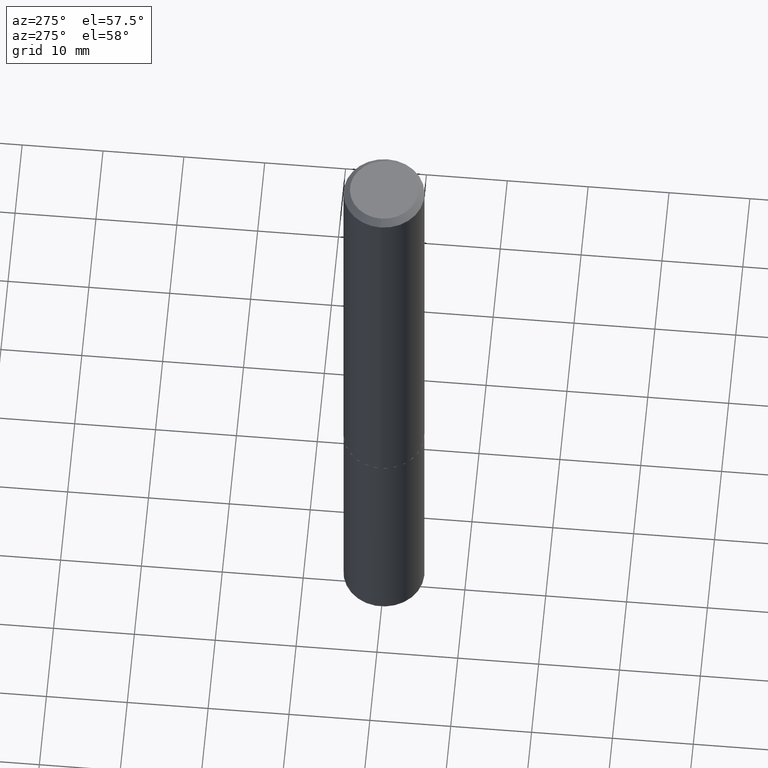
[diagram: clean part render]
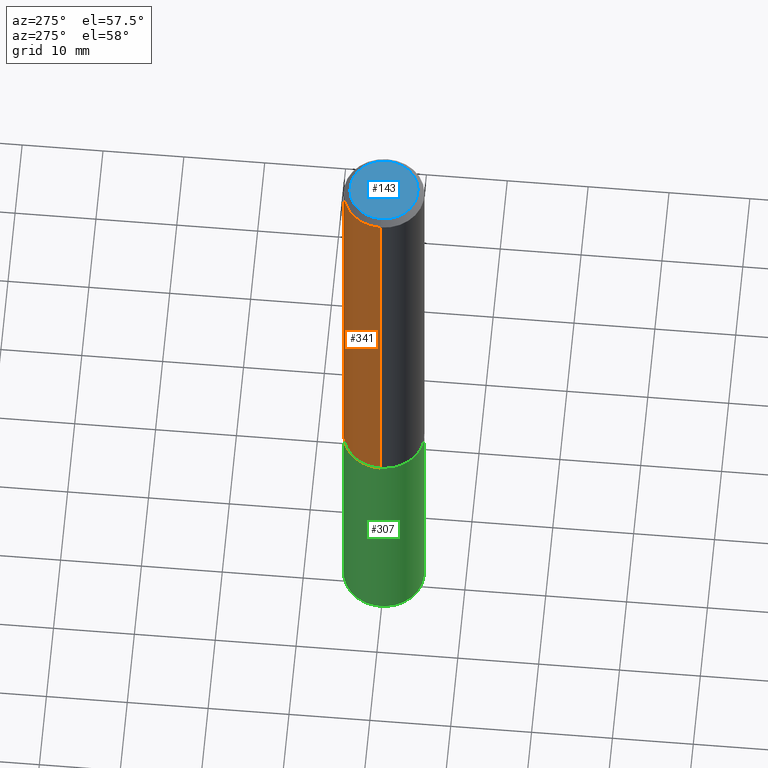
[diagram: same view with three faces highlighted in distinct colors, each labeled with its STEP entity id]
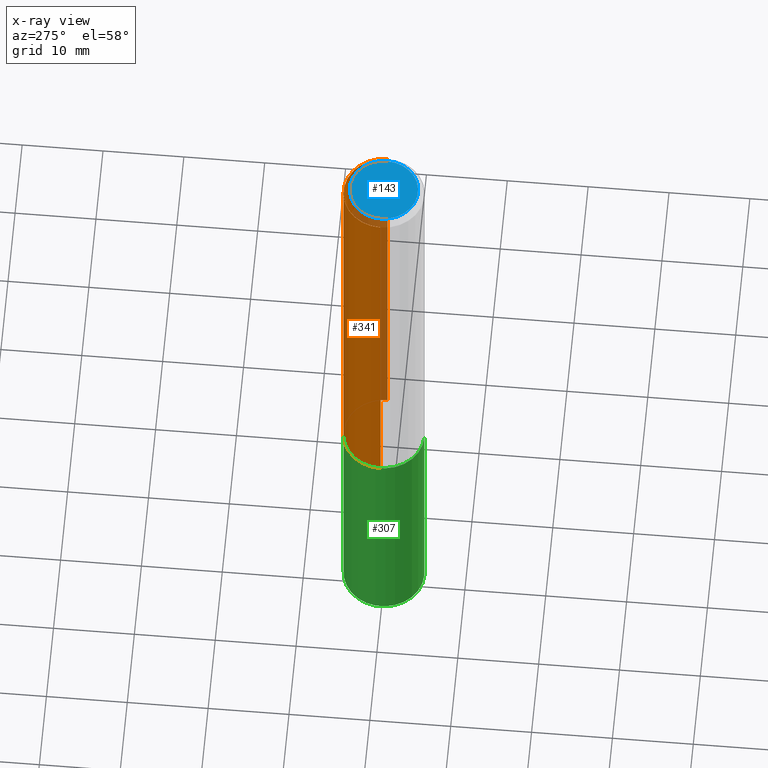
[diagram: x-ray of the same camera — body ghosted, the three highlighted faces saturated]
A machine part, auxiliary view with three faces highlighted in distinct colors.
The next image is the same camera in x-ray (body ghosted, the three faces saturated) — at least one of them is partly hidden behind the body in this view.
Their STEP definitions:

[orange] entity #341 — the highlighted cylindrical surface (partial cylindrical patch) has radius 5 mm, axis along (-0, 0, 1).
#7 = EDGE_CURVE ( 'NONE', #103, #100, #42, .T. ) ;
#12 = EDGE_CURVE ( 'NONE', #100, #184, #363, .T. ) ;
#22 = CIRCLE ( 'NONE', #86, 0.1968500000000002748 ) ;
#30 = EDGE_CURVE ( 'NONE', #103, #367, #22, .T. ) ;
#31 = CARTESIAN_POINT ( 'NONE',  ( -0.1968500000000001360, 1.398703375343758182E-15, -9.682923725166790684E-30 ) ) ;
#33 = CARTESIAN_POINT ( 'NONE',  ( -0.1968500000000002748, -6.297219791734301467E-15, -2.204199999999999715 ) ) ;
#42 = LINE ( 'NONE', #166, #151 ) ;
#84 = ORIENTED_EDGE ( 'NONE', *, *, #12, .F. ) ;
#86 = AXIS2_PLACEMENT_3D ( 'NONE', #383, #253, #298 ) ;
#87 = VECTOR ( 'NONE', #136, 39.37007874015748143 ) ;
#89 = DIRECTION ( 'NONE',  ( 1.000000000000000000, -6.982962677686265922E-15, 0.000000000000000000 ) ) ;
#100 = VERTEX_POINT ( 'NONE', #201 ) ;
#103 = VERTEX_POINT ( 'NONE', #115 ) ;
#115 = CARTESIAN_POINT ( 'NONE',  ( 0.1968500000000002748, -9.070519370180604019E-15, -2.204199999999999715 ) ) ;
#128 = LINE ( 'NONE', #31, #87 ) ;
#135 = ORIENTED_EDGE ( 'NONE', *, *, #30, .T. ) ;
#136 = DIRECTION ( 'NONE',  ( -2.445468806185136877E-29, 3.491481338843145188E-15, 1.000000000000000000 ) ) ;
#151 = VECTOR ( 'NONE', #283, 39.37007874015748143 ) ;
#162 = CARTESIAN_POINT ( 'NONE',  ( 0.000000000000000000, 0.000000000000000000, 0.000000000000000000 ) ) ;
#166 = CARTESIAN_POINT ( 'NONE',  ( 0.1968500000000001360, -1.374596203102542594E-15, 9.598753983154306463E-30 ) ) ;
#182 = CARTESIAN_POINT ( 'NONE',  ( -0.1968500000000000250, -2.503812604114695601E-15, -0.03125000000000022898 ) ) ;
#184 = VERTEX_POINT ( 'NONE', #182 ) ;
#191 = FACE_OUTER_BOUND ( 'NONE', #271, .T. ) ;
#198 = AXIS2_PLACEMENT_3D ( 'NONE', #355, #348, #89 ) ;
#201 = CARTESIAN_POINT ( 'NONE',  ( 0.1968500000000000250, -1.483704994941390709E-15, -0.03125000000000022898 ) ) ;
#246 = CYLINDRICAL_SURFACE ( 'NONE', #310, 0.1968500000000001360 ) ;
#253 = DIRECTION ( 'NONE',  ( -2.445468806185136597E-29, 3.491481338843145583E-15, 1.000000000000000000 ) ) ;
#264 = ORIENTED_EDGE ( 'NONE', *, *, #7, .F. ) ;
#271 = EDGE_LOOP ( 'NONE', ( #135, #311, #84, #264 ) ) ;
#280 = DIRECTION ( 'NONE',  ( -2.445468806185136597E-29, 3.491481338843145583E-15, 1.000000000000000000 ) ) ;
#283 = DIRECTION ( 'NONE',  ( -2.445468806185136877E-29, 3.491481338843145188E-15, 1.000000000000000000 ) ) ;
#298 = DIRECTION ( 'NONE',  ( 1.000000000000000000, -6.982962677686264344E-15, 0.000000000000000000 ) ) ;
#310 = AXIS2_PLACEMENT_3D ( 'NONE', #162, #280, #366 ) ;
#311 = ORIENTED_EDGE ( 'NONE', *, *, #343, .T. ) ;
#341 = ADVANCED_FACE ( 'NONE', ( #191 ), #246, .T. ) ;
#343 = EDGE_CURVE ( 'NONE', #367, #184, #128, .T. ) ;
#348 = DIRECTION ( 'NONE',  ( -2.445468806185136597E-29, 3.491481338843145583E-15, 1.000000000000000000 ) ) ;
#355 = CARTESIAN_POINT ( 'NONE',  ( 7.642090019328607917E-31, -1.091087918388491006E-16, -0.03125000000000022898 ) ) ;
#363 = CIRCLE ( 'NONE', #198, 0.1968500000000000250 ) ;
#366 = DIRECTION ( 'NONE',  ( 1.000000000000000000, -6.982962677686266711E-15, 4.876176775795935793E-29 ) ) ;
#367 = VERTEX_POINT ( 'NONE', #33 ) ;
#383 = CARTESIAN_POINT ( 'NONE',  ( 5.390302342593277355E-29, -7.695923167078060833E-15, -2.204199999999999715 ) ) ;

[blue] entity #143 — the highlighted planar face has unit normal (0, -0, -1).
#6 = ORIENTED_EDGE ( 'NONE', *, *, #203, .T. ) ;
#10 = FACE_OUTER_BOUND ( 'NONE', #137, .T. ) ;
#55 = DIRECTION ( 'NONE',  ( 1.000000000000000000, -6.982962677686266711E-15, 4.876220105038334323E-29 ) ) ;
#80 = VERTEX_POINT ( 'NONE', #110 ) ;
#110 = CARTESIAN_POINT ( 'NONE',  ( -0.1655999999999999972, 1.210933015344269141E-15, 1.206277097151870064E-18 ) ) ;
#137 = EDGE_LOOP ( 'NONE', ( #6, #290 ) ) ;
#139 = CIRCLE ( 'NONE', #233, 0.1655999999999999972 ) ;
#140 = PLANE ( 'NONE',  #304 ) ;
#143 = ADVANCED_FACE ( 'NONE', ( #10 ), #140, .F. ) ;
#154 = DIRECTION ( 'NONE',  ( -2.445468806185136597E-29, 3.491481338843145583E-15, 1.000000000000000000 ) ) ;
#203 = EDGE_CURVE ( 'NONE', #80, #281, #316, .T. ) ;
#211 = CARTESIAN_POINT ( 'NONE',  ( -2.949913012720698115E-47, 4.211693974208535336E-33, 1.206277097160147711E-18 ) ) ;
#233 = AXIS2_PLACEMENT_3D ( 'NONE', #318, #362, #243 ) ;
#243 = DIRECTION ( 'NONE',  ( 1.000000000000000000, -6.982962677686266711E-15, 4.876220105038334323E-29 ) ) ;
#281 = VERTEX_POINT ( 'NONE', #361 ) ;
#290 = ORIENTED_EDGE ( 'NONE', *, *, #356, .T. ) ;
#304 = AXIS2_PLACEMENT_3D ( 'NONE', #373, #320, #351 ) ;
#316 = CIRCLE ( 'NONE', #390, 0.1655999999999999972 ) ;
#318 = CARTESIAN_POINT ( 'NONE',  ( -2.949913012720698115E-47, 4.211693974208535336E-33, 1.206277097160147711E-18 ) ) ;
#320 = DIRECTION ( 'NONE',  ( 2.438088387897960049E-29, -3.491481338843145188E-15, -1.000000000000000000 ) ) ;
#351 = DIRECTION ( 'NONE',  ( -1.000000000000000000, 6.982962677686265922E-15, -4.876176775795935793E-29 ) ) ;
#356 = EDGE_CURVE ( 'NONE', #281, #80, #139, .T. ) ;
#361 = CARTESIAN_POINT ( 'NONE',  ( 0.1655999999999999972, -1.297848145565570390E-15, 1.206277097168728884E-18 ) ) ;
#362 = DIRECTION ( 'NONE',  ( -2.445468806185136597E-29, 3.491481338843145583E-15, 1.000000000000000000 ) ) ;
#373 = CARTESIAN_POINT ( 'NONE',  ( -1.474956506360349058E-47, 2.105846987104267668E-33, 6.031385485800738553E-19 ) ) ;
#390 = AXIS2_PLACEMENT_3D ( 'NONE', #211, #154, #55 ) ;

[green] entity #307 — the highlighted cylindrical surface (partial cylindrical patch) has radius 5 mm, axis along (-0, 0, 1).
#4 = ORIENTED_EDGE ( 'NONE', *, *, #368, .T. ) ;
#16 = VECTOR ( 'NONE', #315, 39.37007874015748143 ) ;
#21 = CARTESIAN_POINT ( 'NONE',  ( 5.391525076996369035E-29, -7.697668907747481548E-15, -2.204699999999999438 ) ) ;
#26 = DIRECTION ( 'NONE',  ( -2.445183817949731968E-29, 3.491889458216768216E-15, 1.000000000000000000 ) ) ;
#54 = CARTESIAN_POINT ( 'NONE',  ( 1.398703375343841801E-15, 0.1968499999999879790, -3.451154201469934790 ) ) ;
#69 = DIRECTION ( 'NONE',  ( -6.982962677686265133E-15, -1.000000000000000000, 2.775563112689116301E-15 ) ) ;
#73 = VERTEX_POINT ( 'NONE', #145 ) ;
#77 = DIRECTION ( 'NONE',  ( -2.445183817949731968E-29, 3.491889458216768610E-15, 1.000000000000000000 ) ) ;
#90 = CYLINDRICAL_SURFACE ( 'NONE', #256, 0.1968500000000000250 ) ;
#108 = EDGE_CURVE ( 'NONE', #284, #73, #344, .T. ) ;
#112 = VECTOR ( 'NONE', #77, 39.37007874015748143 ) ;
#116 = FACE_OUTER_BOUND ( 'NONE', #196, .T. ) ;
#121 = DIRECTION ( 'NONE',  ( -6.982962677686265133E-15, -1.000000000000000000, 4.163344669033674845E-15 ) ) ;
#124 = AXIS2_PLACEMENT_3D ( 'NONE', #161, #371, #69 ) ;
#129 = ORIENTED_EDGE ( 'NONE', *, *, #223, .F. ) ;
#145 = CARTESIAN_POINT ( 'NONE',  ( 1.398703375343841801E-15, 0.1968499999999923367, -2.204700000000000326 ) ) ;
#161 = CARTESIAN_POINT ( 'NONE',  ( 8.439334720246109226E-29, -1.205014919401034769E-14, -3.451154201469934346 ) ) ;
#196 = EDGE_LOOP ( 'NONE', ( #317, #217, #4, #129 ) ) ;
#207 = CARTESIAN_POINT ( 'NONE',  ( 5.391525076996369035E-29, -7.697668907747481548E-15, -2.204699999999999438 ) ) ;
#210 = CIRCLE ( 'NONE', #124, 0.1968500000000000250 ) ;
#216 = LINE ( 'NONE', #248, #16 ) ;
#217 = ORIENTED_EDGE ( 'NONE', *, *, #376, .T. ) ;
#223 = EDGE_CURVE ( 'NONE', #73, #365, #359, .T. ) ;
#248 = CARTESIAN_POINT ( 'NONE',  ( -1.374596203102487571E-15, -0.1968500000000076855, -2.204699999999998550 ) ) ;
#249 = VERTEX_POINT ( 'NONE', #360 ) ;
#256 = AXIS2_PLACEMENT_3D ( 'NONE', #207, #329, #328 ) ;
#275 = CARTESIAN_POINT ( 'NONE',  ( -1.374596203102487571E-15, -0.1968500000000076855, -2.204699999999998550 ) ) ;
#284 = VERTEX_POINT ( 'NONE', #54 ) ;
#286 = AXIS2_PLACEMENT_3D ( 'NONE', #21, #26, #121 ) ;
#291 = CARTESIAN_POINT ( 'NONE',  ( 1.398703375343810839E-15, 0.1968499999999923367, -2.204700000000000326 ) ) ;
#307 = ADVANCED_FACE ( 'NONE', ( #116 ), #90, .T. ) ;
#315 = DIRECTION ( 'NONE',  ( -2.445183817949731968E-29, 3.491889458216768610E-15, 1.000000000000000000 ) ) ;
#317 = ORIENTED_EDGE ( 'NONE', *, *, #108, .F. ) ;
#328 = DIRECTION ( 'NONE',  ( -6.982962677686265133E-15, -1.000000000000000000, 4.163344669033674845E-15 ) ) ;
#329 = DIRECTION ( 'NONE',  ( -2.445183817949731968E-29, 3.491889458216768216E-15, 1.000000000000000000 ) ) ;
#344 = LINE ( 'NONE', #291, #112 ) ;
#359 = CIRCLE ( 'NONE', #286, 0.1968500000000000250 ) ;
#360 = CARTESIAN_POINT ( 'NONE',  ( -1.374596203102457200E-15, -0.1968500000000120709, -3.451154201469933902 ) ) ;
#365 = VERTEX_POINT ( 'NONE', #275 ) ;
#368 = EDGE_CURVE ( 'NONE', #249, #365, #216, .T. ) ;
#371 = DIRECTION ( 'NONE',  ( -2.445183817949731968E-29, 3.491889458216768216E-15, 1.000000000000000000 ) ) ;
#376 = EDGE_CURVE ( 'NONE', #284, #249, #210, .T. ) ;